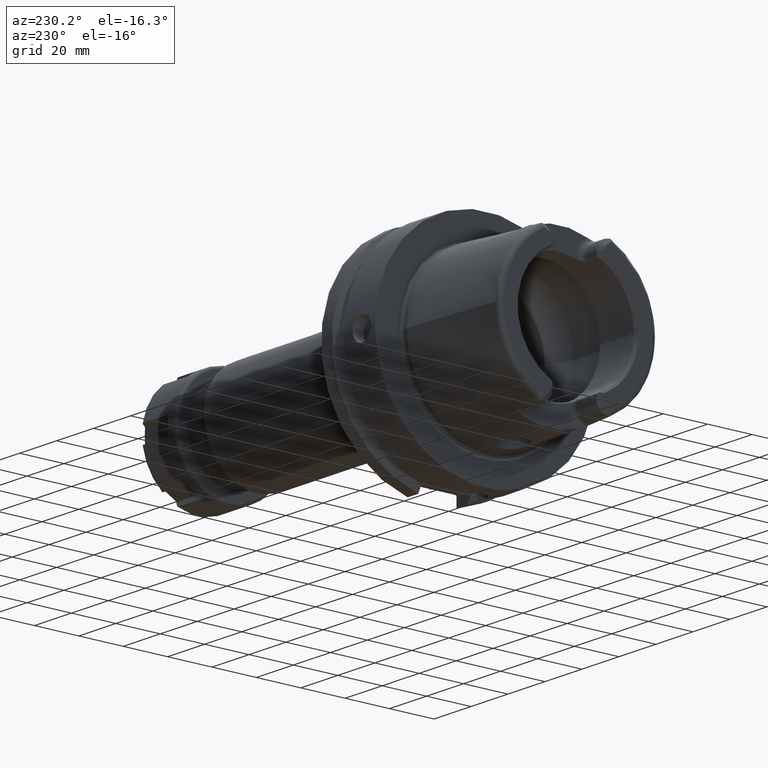
[diagram: clean part render]
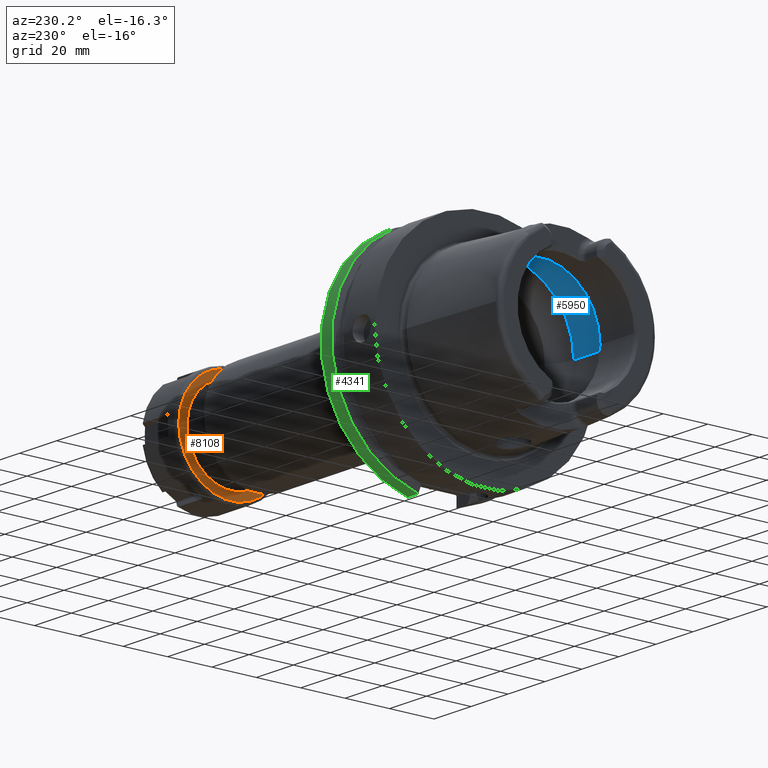
[diagram: same view with three faces highlighted in distinct colors, each labeled with its STEP entity id]
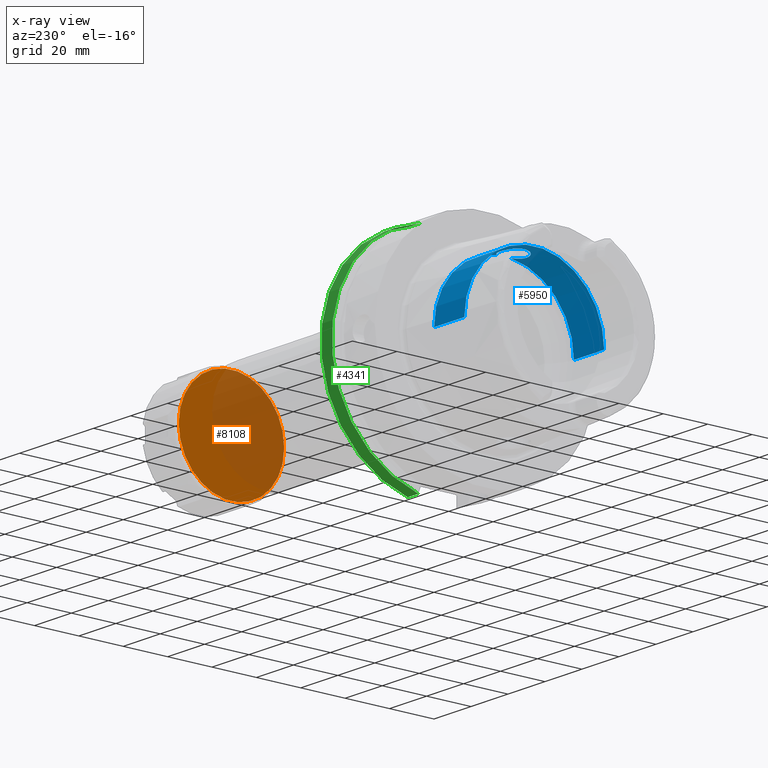
[diagram: x-ray of the same camera — body ghosted, the three highlighted faces saturated]
A machine part, auxiliary view with three faces highlighted in distinct colors.
The next image is the same camera in x-ray (body ghosted, the three faces saturated) — at least one of them is partly hidden behind the body in this view.
Their STEP definitions:

[orange] entity #8108 — the highlighted planar face has unit normal (1, 0, 0).
#7401=CARTESIAN_POINT('',(0.E0,0.E0,0.E0));
#7402=DIRECTION('',(-1.E0,0.E0,0.E0));
#7403=DIRECTION('',(0.E0,1.E0,0.E0));
#7404=AXIS2_PLACEMENT_3D('',#7401,#7402,#7403);
#7406=CARTESIAN_POINT('',(0.E0,0.E0,0.E0));
#7407=DIRECTION('',(-1.E0,0.E0,0.E0));
#7408=DIRECTION('',(0.E0,-1.E0,0.E0));
#7409=AXIS2_PLACEMENT_3D('',#7406,#7407,#7408);
#7550=CARTESIAN_POINT('',(0.E0,2.375E1,0.E0));
#7551=CARTESIAN_POINT('',(0.E0,-2.375E1,0.E0));
#7552=VERTEX_POINT('',#7550);
#7553=VERTEX_POINT('',#7551);
#8098=CARTESIAN_POINT('',(0.E0,0.E0,0.E0));
#8099=DIRECTION('',(1.E0,0.E0,0.E0));
#8100=DIRECTION('',(0.E0,-1.E0,0.E0));
#8101=AXIS2_PLACEMENT_3D('',#8098,#8099,#8100);
#8102=PLANE('',#8101);
#8104=ORIENTED_EDGE('',*,*,#8103,.F.);
#8105=ORIENTED_EDGE('',*,*,#8088,.F.);
#8106=EDGE_LOOP('',(#8104,#8105));
#8107=FACE_OUTER_BOUND('',#8106,.F.);
#8108=ADVANCED_FACE('',(#8107),#8102,.F.);
#7405=CIRCLE('',#7404,2.375E1);
#7410=CIRCLE('',#7409,2.375E1);
#8088=EDGE_CURVE('',#7553,#7552,#7410,.T.);
#8103=EDGE_CURVE('',#7552,#7553,#7405,.T.);

[blue] entity #5950 — the highlighted cylindrical surface (partial cylindrical patch) has radius 31.5 mm, axis along (1, 0, 0).
#2155=CARTESIAN_POINT('',(-9.846794344809E0,3.073185883624E0,3.134972932139E1));
#2157=CARTESIAN_POINT('',(-9.846794344809E0,-3.073185883624E0,
3.134972932139E1));
#2171=CARTESIAN_POINT('',(-9.846794344809E0,3.073185883624E0,3.134972932139E1));
#2172=CARTESIAN_POINT('',(-9.979350610583E0,3.295460007053E0,3.132793998818E1));
#2173=CARTESIAN_POINT('',(-1.027063887730E1,3.719249728918E0,3.128166137702E1));
#2174=CARTESIAN_POINT('',(-1.079035808135E1,4.298920478732E0,3.120689190392E1));
#2175=CARTESIAN_POINT('',(-1.137898274965E1,4.805041081809E0,3.113254787077E1));
#2176=CARTESIAN_POINT('',(-1.202658779818E1,5.230450418473E0,3.106351678434E1));
#2177=CARTESIAN_POINT('',(-1.271973952812E1,5.567575114105E0,3.100453126817E1));
#2178=CARTESIAN_POINT('',(-1.345035493347E1,5.813488696578E0,3.095911024256E1));
#2179=CARTESIAN_POINT('',(-1.420764120587E1,5.964169161635E0,3.093027187856E1));
#2180=CARTESIAN_POINT('',(-1.497984446875E1,6.016521870398E0,3.092007259785E1));
#2181=CARTESIAN_POINT('',(-1.575309935594E1,5.969543750814E0,3.092922961197E1));
#2182=CARTESIAN_POINT('',(-1.652541066125E1,5.820717381311E0,3.095775345043E1));
#2183=CARTESIAN_POINT('',(-1.727341934717E1,5.571094163642E0,3.100391709528E1));
#2184=CARTESIAN_POINT('',(-1.797719195757E1,5.228690177102E0,3.106382935769E1));
#2185=CARTESIAN_POINT('',(-1.863207171596E1,4.797562142056E0,3.113375842146E1));
#2186=CARTESIAN_POINT('',(-1.923624043330E1,4.274224967480E0,3.121040427516E1));
#2187=CARTESIAN_POINT('',(-1.976613927382E1,3.673557002686E0,3.128721124755E1));
#2188=CARTESIAN_POINT('',(-2.020637808011E1,3.016563255921E0,3.135771603394E1));
#2189=CARTESIAN_POINT('',(-2.055582787998E1,2.311076998962E0,3.141795380196E1));
#2190=CARTESIAN_POINT('',(-2.081257397864E1,1.557663843048E0,3.146462805191E1));
#2191=CARTESIAN_POINT('',(-2.096662575255E1,7.779183163064E-1,
3.149361665994E1));
#2192=CARTESIAN_POINT('',(-2.1E1,2.599995876471E-1,3.15E1));
#2193=CARTESIAN_POINT('',(-2.1E1,0.E0,3.15E1));
#2195=CARTESIAN_POINT('',(-9.846794344809E0,0.E0,0.E0));
#2196=DIRECTION('',(1.E0,0.E0,0.E0));
#2197=DIRECTION('',(0.E0,1.E0,0.E0));
#2198=AXIS2_PLACEMENT_3D('',#2195,#2196,#2197);
#2200=CARTESIAN_POINT('',(-9.846794344809E0,0.E0,0.E0));
#2201=DIRECTION('',(1.E0,0.E0,0.E0));
#2202=DIRECTION('',(0.E0,-9.756145662299E-2,9.952295022665E-1));
#2203=AXIS2_PLACEMENT_3D('',#2200,#2201,#2202);
#2205=CARTESIAN_POINT('',(-2.1E1,0.E0,3.15E1));
#2206=CARTESIAN_POINT('',(-2.1E1,-2.571227322628E-1,3.15E1));
#2207=CARTESIAN_POINT('',(-2.096736472421E1,-7.693984126219E-1,
3.149375838501E1));
#2208=CARTESIAN_POINT('',(-2.081659080202E1,-1.541049857093E0,
3.146537963405E1));
#2209=CARTESIAN_POINT('',(-2.056550243220E1,-2.286682308644E0,
3.141968549161E1));
#2210=CARTESIAN_POINT('',(-2.022340587255E1,-2.986151195866E0,
3.136058293097E1));
#2211=CARTESIAN_POINT('',(-1.979326828629E1,-3.637340617479E0,
3.129140992251E1));
#2212=CARTESIAN_POINT('',(-1.927478905529E1,-4.235071698102E0,
3.121573223434E1));
#2213=CARTESIAN_POINT('',(-1.868247740736E1,-4.758599460883E0,
3.113974969594E1));
#2214=CARTESIAN_POINT('',(-1.803686661027E1,-5.194005287447E0,
3.106967109408E1));
#2215=CARTESIAN_POINT('',(-1.734161583992E1,-5.542612510908E0,
3.100904668501E1));
#2216=CARTESIAN_POINT('',(-1.659831672384E1,-5.801097428712E0,
3.096145823760E1));
#2217=CARTESIAN_POINT('',(-1.582796267308E1,-5.959654019058E0,
3.093114785940E1));
#2218=CARTESIAN_POINT('',(-1.505461105168E1,-6.016295452388E0,
3.092011677740E1));
#2219=CARTESIAN_POINT('',(-1.428037054876E1,-5.973681036842E0,
3.092842594800E1));
#2220=CARTESIAN_POINT('',(-1.350797364848E1,-5.829331845562E0,
3.095612333536E1));
#2221=CARTESIAN_POINT('',(-1.275967231567E1,-5.584336729774E0,
3.100151619127E1));
#2222=CARTESIAN_POINT('',(-1.205825931241E1,-5.248465876117E0,
3.106046672590E1));
#2223=CARTESIAN_POINT('',(-1.140515180586E1,-4.825059400574E0,
3.112945635419E1));
#2224=CARTESIAN_POINT('',(-1.080442776173E1,-4.313579447853E0,
3.120492076547E1));
#2225=CARTESIAN_POINT('',(-1.027427619122E1,-3.724621952008E0,
3.128107616940E1));
#2226=CARTESIAN_POINT('',(-9.980265351482E0,-3.296993870656E0,
3.132778962490E1));
#2227=CARTESIAN_POINT('',(-9.846794344809E0,-3.073185883624E0,
3.134972932139E1));
#2282=DIRECTION('',(-1.E0,0.E0,0.E0));
#2283=VECTOR('',#2282,1.640380457843E1);
#2284=CARTESIAN_POINT('',(-9.846794344809E0,-3.15E1,0.E0));
#2285=LINE('',#2284,#2283);
#2286=DIRECTION('',(-1.E0,0.E0,0.E0));
#2287=VECTOR('',#2286,1.640380457843E1);
#2288=CARTESIAN_POINT('',(-9.846794344809E0,3.15E1,0.E0));
#2289=LINE('',#2288,#2287);
#2539=CARTESIAN_POINT('',(-2.625059892324E1,0.E0,0.E0));
#2540=DIRECTION('',(1.E0,0.E0,0.E0));
#2541=DIRECTION('',(0.E0,1.E0,0.E0));
#2542=AXIS2_PLACEMENT_3D('',#2539,#2540,#2541);
#2821=CARTESIAN_POINT('',(-9.846794344809E0,3.15E1,0.E0));
#2822=VERTEX_POINT('',#2821);
#2823=CARTESIAN_POINT('',(-2.625059892324E1,3.15E1,0.E0));
#2824=VERTEX_POINT('',#2823);
#2833=CARTESIAN_POINT('',(-9.846794344809E0,-3.15E1,0.E0));
#2834=VERTEX_POINT('',#2833);
#2835=CARTESIAN_POINT('',(-2.625059892324E1,-3.15E1,0.E0));
#2836=VERTEX_POINT('',#2835);
#3001=VERTEX_POINT('',#2155);
#3002=VERTEX_POINT('',#2157);
#3003=VERTEX_POINT('',#2193);
#5933=CARTESIAN_POINT('',(-5.3125E1,0.E0,0.E0));
#5934=DIRECTION('',(1.E0,0.E0,0.E0));
#5935=DIRECTION('',(0.E0,-1.E0,0.E0));
#5936=AXIS2_PLACEMENT_3D('',#5933,#5934,#5935);
#5937=CYLINDRICAL_SURFACE('',#5936,3.15E1);
#5938=ORIENTED_EDGE('',*,*,#5892,.F.);
#5939=ORIENTED_EDGE('',*,*,#5928,.F.);
#5941=ORIENTED_EDGE('',*,*,#5940,.T.);
#5943=ORIENTED_EDGE('',*,*,#5942,.T.);
#5945=ORIENTED_EDGE('',*,*,#5944,.F.);
#5946=ORIENTED_EDGE('',*,*,#5920,.F.);
#5947=ORIENTED_EDGE('',*,*,#5614,.F.);
#5948=EDGE_LOOP('',(#5938,#5939,#5941,#5943,#5945,#5946,#5947));
#5949=FACE_OUTER_BOUND('',#5948,.F.);
#5950=ADVANCED_FACE('',(#5949),#5937,.F.);
#2194=B_SPLINE_CURVE_WITH_KNOTS('',3,(#2171,#2172,#2173,#2174,#2175,#2176,#2177,
#2178,#2179,#2180,#2181,#2182,#2183,#2184,#2185,#2186,#2187,#2188,#2189,#2190,
#2191,#2192,#2193),.UNSPECIFIED.,.F.,.F.,(4,1,1,1,1,1,1,1,1,1,1,1,1,1,1,1,1,1,1,
1,4),(0.E0,5.E-2,1.E-1,1.5E-1,2.E-1,2.5E-1,3.E-1,3.5E-1,4.E-1,4.5E-1,5.E-1,
5.5E-1,6.E-1,6.5E-1,7.E-1,7.5E-1,8.E-1,8.5E-1,9.E-1,9.5E-1,1.E0),.UNSPECIFIED.);
#2199=CIRCLE('',#2198,3.15E1);
#2204=CIRCLE('',#2203,3.15E1);
#2228=B_SPLINE_CURVE_WITH_KNOTS('',3,(#2205,#2206,#2207,#2208,#2209,#2210,#2211,
#2212,#2213,#2214,#2215,#2216,#2217,#2218,#2219,#2220,#2221,#2222,#2223,#2224,
#2225,#2226,#2227),.UNSPECIFIED.,.F.,.F.,(4,1,1,1,1,1,1,1,1,1,1,1,1,1,1,1,1,1,1,
1,4),(0.E0,5.E-2,1.E-1,1.5E-1,2.E-1,2.5E-1,3.E-1,3.5E-1,4.E-1,4.5E-1,5.E-1,
5.5E-1,6.E-1,6.5E-1,7.E-1,7.5E-1,8.E-1,8.5E-1,9.E-1,9.5E-1,1.E0),.UNSPECIFIED.);
#2543=CIRCLE('',#2542,3.15E1);
#5614=EDGE_CURVE('',#3003,#3002,#2228,.T.);
#5892=EDGE_CURVE('',#3001,#3003,#2194,.T.);
#5920=EDGE_CURVE('',#3002,#2834,#2204,.T.);
#5928=EDGE_CURVE('',#2822,#3001,#2199,.T.);
#5940=EDGE_CURVE('',#2822,#2824,#2289,.T.);
#5942=EDGE_CURVE('',#2824,#2836,#2543,.T.);
#5944=EDGE_CURVE('',#2834,#2836,#2285,.T.);

[green] entity #4341 — the highlighted cylindrical surface (partial cylindrical patch) has radius 50 mm, axis along (1, 0, 0).
#1065=CARTESIAN_POINT('',(2.9E1,0.E0,0.E0));
#1066=DIRECTION('',(1.E0,0.E0,0.E0));
#1067=DIRECTION('',(0.E0,2.2042E-1,-9.754050561690E-1));
#1068=AXIS2_PLACEMENT_3D('',#1065,#1066,#1067);
#1186=DIRECTION('',(-1.E0,0.E0,0.E0));
#1187=VECTOR('',#1186,5.752404735808E0);
#1188=CARTESIAN_POINT('',(2.9E1,1.1021E1,-4.877025280845E1));
#1189=LINE('',#1188,#1187);
#1627=CARTESIAN_POINT('',(2.324759526419E1,1.1021E1,-4.877025280845E1));
#1634=CARTESIAN_POINT('',(2.324759526419E1,0.E0,0.E0));
#1635=DIRECTION('',(1.E0,0.E0,0.E0));
#1636=DIRECTION('',(0.E0,2.2042E-1,-9.754050561690E-1));
#1637=AXIS2_PLACEMENT_3D('',#1634,#1635,#1636);
#1644=CARTESIAN_POINT('',(2.324759526419E1,1.0021E1,4.898550355973E1));
#1703=DIRECTION('',(1.E0,0.E0,0.E0));
#1704=VECTOR('',#1703,5.752404735808E0);
#1705=CARTESIAN_POINT('',(2.324759526419E1,1.0021E1,4.898550355973E1));
#1706=LINE('',#1705,#1704);
#3075=VERTEX_POINT('',#1644);
#3112=VERTEX_POINT('',#1627);
#3134=CARTESIAN_POINT('',(2.9E1,1.1021E1,-4.877025280845E1));
#3135=CARTESIAN_POINT('',(2.9E1,1.0021E1,4.898550355973E1));
#3136=VERTEX_POINT('',#3134);
#3137=VERTEX_POINT('',#3135);
#4326=CARTESIAN_POINT('',(-5.395E1,0.E0,0.E0));
#4327=DIRECTION('',(1.E0,0.E0,0.E0));
#4328=DIRECTION('',(0.E0,-1.E0,0.E0));
#4329=AXIS2_PLACEMENT_3D('',#4326,#4327,#4328);
#4330=CYLINDRICAL_SURFACE('',#4329,5.E1);
#4332=ORIENTED_EDGE('',*,*,#4331,.F.);
#4334=ORIENTED_EDGE('',*,*,#4333,.T.);
#4336=ORIENTED_EDGE('',*,*,#4335,.F.);
#4338=ORIENTED_EDGE('',*,*,#4337,.F.);
#4339=EDGE_LOOP('',(#4332,#4334,#4336,#4338));
#4340=FACE_OUTER_BOUND('',#4339,.F.);
#4341=ADVANCED_FACE('',(#4340),#4330,.T.);
#1069=CIRCLE('',#1068,5.E1);
#1638=CIRCLE('',#1637,5.E1);
#4331=EDGE_CURVE('',#3136,#3112,#1189,.T.);
#4333=EDGE_CURVE('',#3136,#3137,#1069,.T.);
#4335=EDGE_CURVE('',#3075,#3137,#1706,.T.);
#4337=EDGE_CURVE('',#3112,#3075,#1638,.T.);